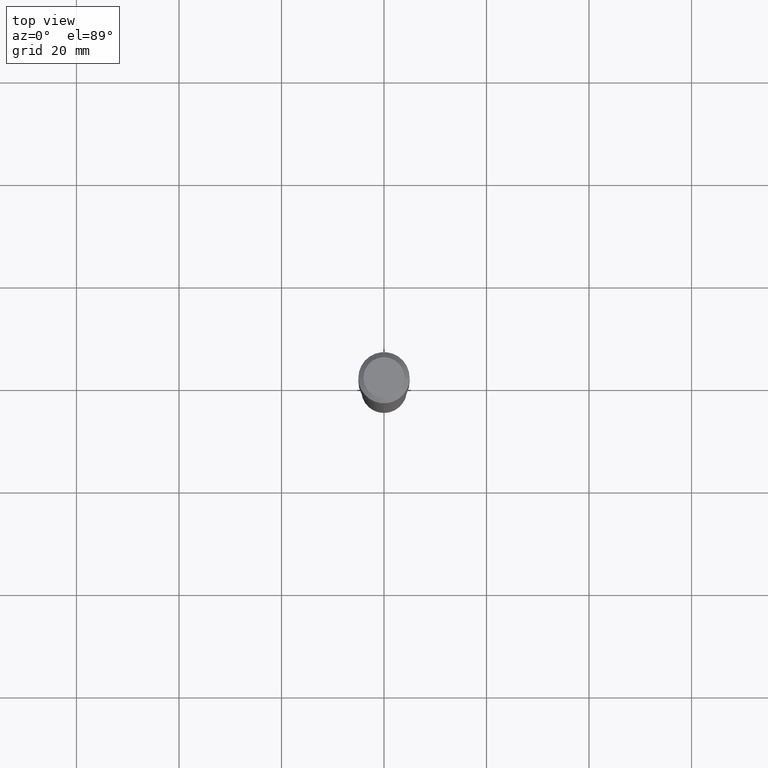
[diagram: clean part render]
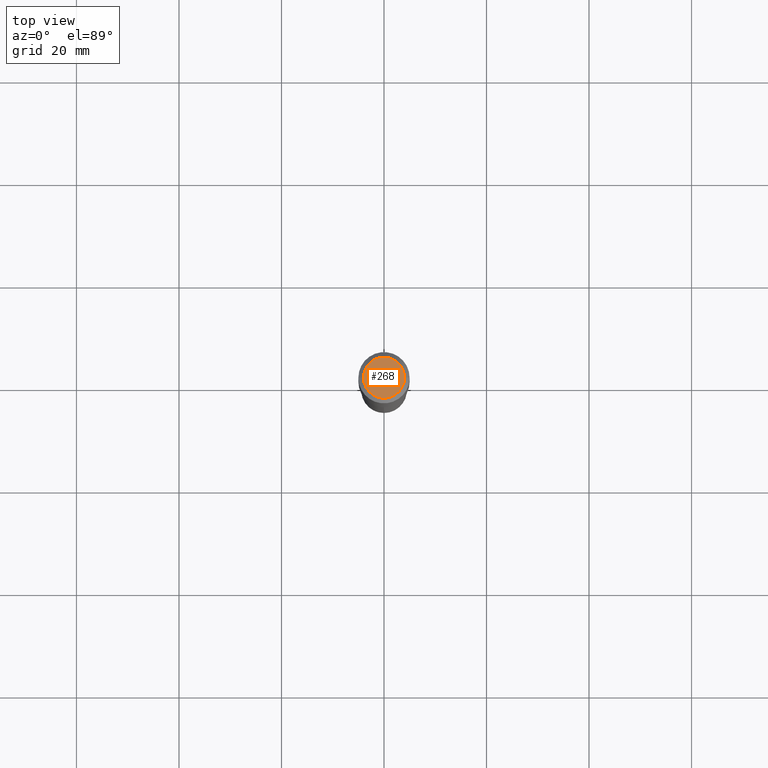
[diagram: same view with one face highlighted and labeled with its STEP entity id]
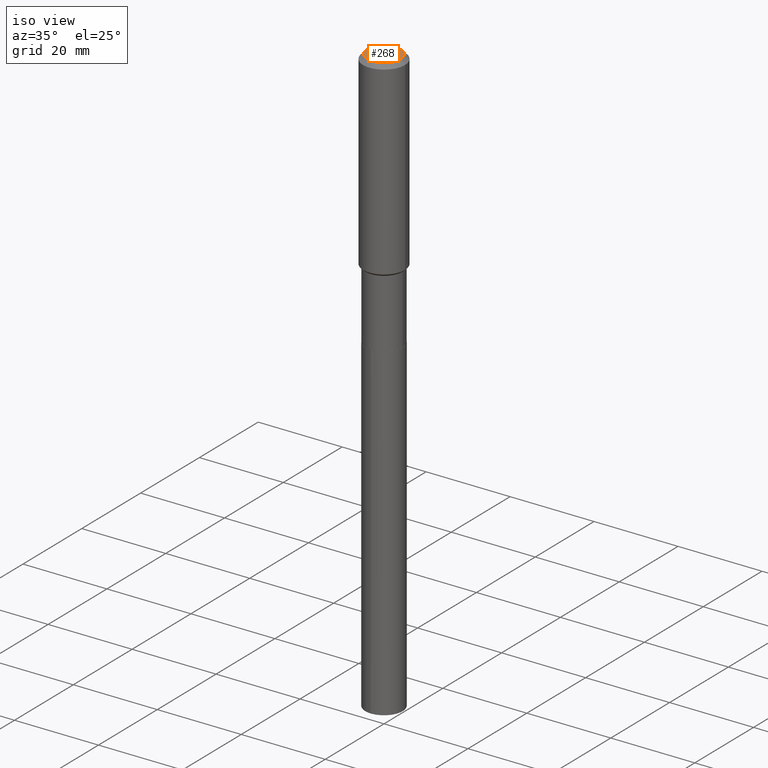
[diagram: same view with one face highlighted and labeled with its STEP entity id]
A machine part, top view. The second image highlights one B-rep face of the part: STEP entity #268.
A second angle (iso view) of the same face is appended — the face is thin or edge-on in the first view.
In plain terms, the highlighted planar face has unit normal (0, -0, -1).
Its self-contained STEP definition (entity closure, byte-faithful):
#5 = ORIENTED_EDGE ( 'NONE', *, *, #151, .T. ) ;
#22 = DIRECTION ( 'NONE',  ( -2.445468806185136597E-29, 3.491481338843145583E-15, 1.000000000000000000 ) ) ;
#31 = DIRECTION ( 'NONE',  ( 2.438088387897960049E-29, -3.491481338843145188E-15, -1.000000000000000000 ) ) ;
#65 = CARTESIAN_POINT ( 'NONE',  ( -9.427742298522567634E-47, 1.346031739168368355E-32, 3.855188123715870730E-18 ) ) ;
#93 = EDGE_CURVE ( 'NONE', #477, #119, #155, .T. ) ;
#119 = VERTEX_POINT ( 'NONE', #363 ) ;
#132 = AXIS2_PLACEMENT_3D ( 'NONE', #253, #22, #463 ) ;
#141 = CARTESIAN_POINT ( 'NONE',  ( -4.713871149261283817E-47, 6.730158695841841775E-33, 1.927594061857935365E-18 ) ) ;
#151 = EDGE_CURVE ( 'NONE', #119, #477, #473, .T. ) ;
#155 = CIRCLE ( 'NONE', #132, 0.1574800000000000089 ) ;
#167 = CARTESIAN_POINT ( 'NONE',  ( 0.1574800000000000089, -1.284169937930321189E-15, 3.855188123724205385E-18 ) ) ;
#253 = CARTESIAN_POINT ( 'NONE',  ( -9.427742298522567634E-47, 1.346031739168368355E-32, 3.855188123715870730E-18 ) ) ;
#255 = DIRECTION ( 'NONE',  ( 1.000000000000000000, -6.982962677686265922E-15, 4.876223630392693006E-29 ) ) ;
#261 = ORIENTED_EDGE ( 'NONE', *, *, #93, .T. ) ;
#262 = AXIS2_PLACEMENT_3D ( 'NONE', #65, #445, #255 ) ;
#268 = ADVANCED_FACE ( 'NONE', ( #485 ), #480, .F. ) ;
#275 = EDGE_LOOP ( 'NONE', ( #5, #261 ) ) ;
#295 = DIRECTION ( 'NONE',  ( -1.000000000000000000, 6.982962677686265922E-15, -4.876176775795935793E-29 ) ) ;
#339 = AXIS2_PLACEMENT_3D ( 'NONE', #141, #31, #295 ) ;
#363 = CARTESIAN_POINT ( 'NONE',  ( -0.1574800000000000089, 1.168406772637159618E-15, 3.855188123707939751E-18 ) ) ;
#445 = DIRECTION ( 'NONE',  ( -2.445468806185136597E-29, 3.491481338843145583E-15, 1.000000000000000000 ) ) ;
#463 = DIRECTION ( 'NONE',  ( 1.000000000000000000, -6.982962677686265922E-15, 4.876223630392693006E-29 ) ) ;
#473 = CIRCLE ( 'NONE', #262, 0.1574800000000000089 ) ;
#477 = VERTEX_POINT ( 'NONE', #167 ) ;
#480 = PLANE ( 'NONE',  #339 ) ;
#485 = FACE_OUTER_BOUND ( 'NONE', #275, .T. ) ;